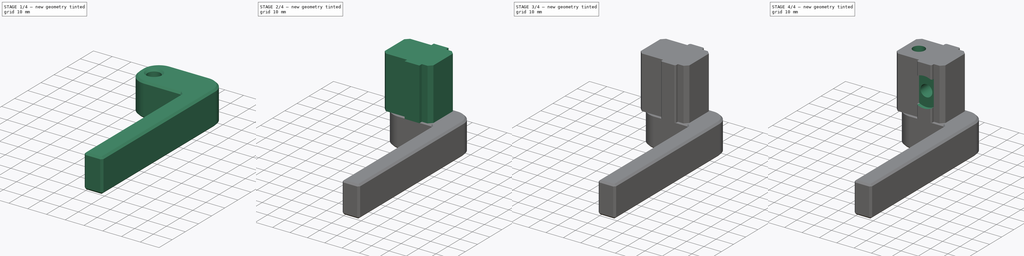
[diagram: build sequence overview — one tinted view per stage of 4, left to right]
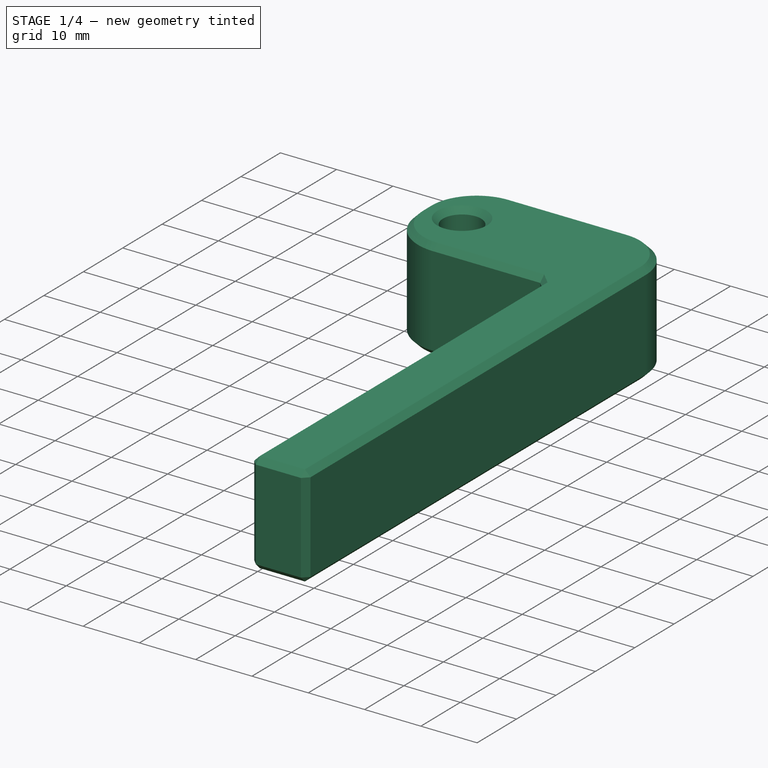
[diagram: stage 1 of 4 — iso view after this stage's code; geometry added in this stage tinted green]
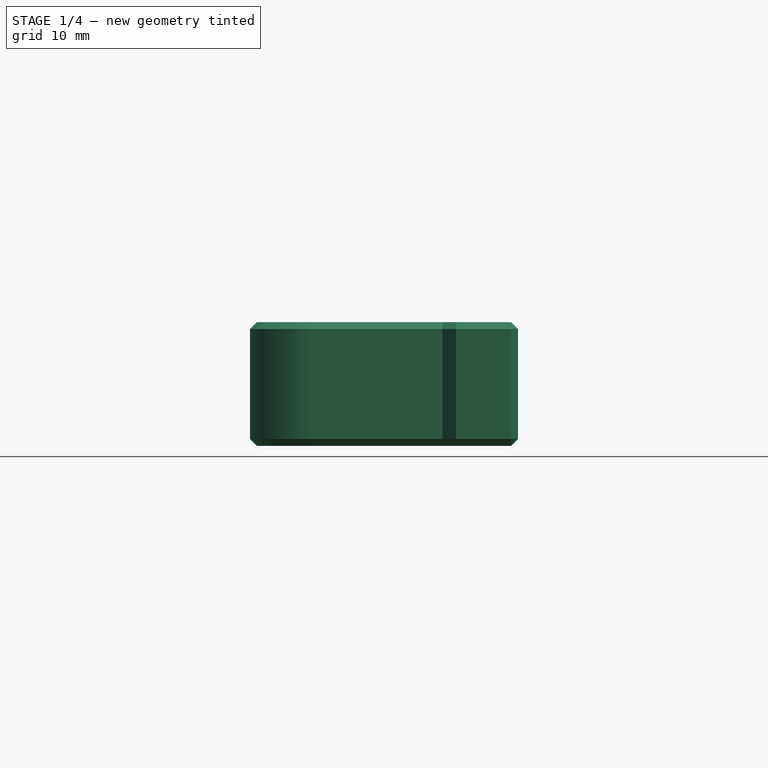
[diagram: stage 1 of 4 — front view after this stage's code; geometry added in this stage tinted green]
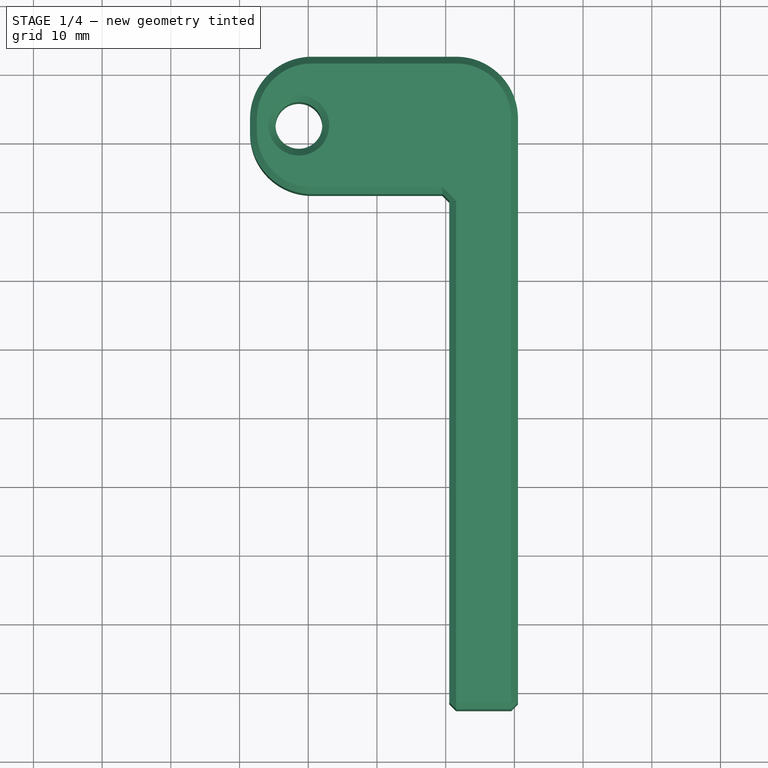
[diagram: stage 1 of 4 — top view after this stage's code; geometry added in this stage tinted green]
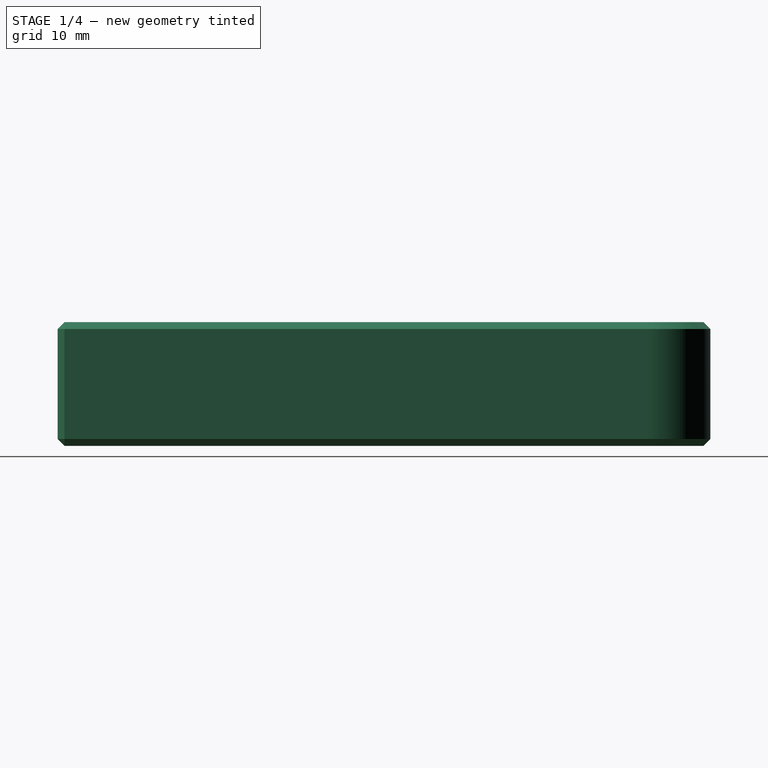
[diagram: stage 1 of 4 — right view after this stage's code; geometry added in this stage tinted green]
FCSTD DOCUMENT  (FreeCAD 0.22R35759 (Git))
Label: track flip stop
License: All rights reserved
LicenseURL: http://en.wikipedia.org/wiki/All_rights_reserved
objects: Sketcher::SketchObject×9, PartDesign::Pocket×4, PartDesign::Pad×3, PartDesign::Chamfer×3, PartDesign::Body×2, Spreadsheet::Sheet×1, PartDesign::Fillet×1
note: 33 computed .brp shape members not serialized (recipe doc carries the construction recipe); baked Part::Feature solids carry a one-line shape summary decoded from their .brp

FEATURE [PartDesign::Body] Body004  label="carrier003"
  Group = -> [Sketch020,Sketch021,Pad006,Sketch022,Pad007,Sketch023,Chamfer006,Chamfer007,Pocket009,Sketch024,Pocket010,Sketch025,Pocket011,Sketch026,Pocket012]
  Origin = -> Origin006
  Tip = -> Pocket012
FEATURE [Sketcher::SketchObject] Sketch027
  FullyConstrained = false
  sketch-geometry (19):
    g0: LineSegment StartX=-18.475 StartY=32.38 StartZ=0 EndX=9.525 EndY=32.38 EndZ=0
    g1: LineSegment StartX=9.525 StartY=32.38 StartZ=0 EndX=9.525 EndY=12.38 EndZ=0
    g2: LineSegment StartX=9.525 StartY=12.38 StartZ=0 EndX=-18.475 EndY=12.38 EndZ=0
    g3: LineSegment StartX=-18.475 StartY=12.38 StartZ=0 EndX=-18.475 EndY=32.38 EndZ=0
    g4: LineSegment StartX=-9.525 StartY=0 StartZ=0 EndX=9.525 EndY=0 EndZ=0
    g5: LineSegment StartX=9.525 StartY=0 StartZ=0 EndX=9.525 EndY=-70 EndZ=0
    g6: LineSegment StartX=9.525 StartY=-70 StartZ=0 EndX=-9.525 EndY=-70 EndZ=0
    g7: LineSegment StartX=-9.525 StartY=-70 StartZ=0 EndX=-9.525 EndY=0 EndZ=0
    g8: LineSegment StartX=-9.525 StartY=0 StartZ=0 EndX=9.525 EndY=0 EndZ=0
    g9: LineSegment StartX=9.525 StartY=0 StartZ=0 EndX=9.525 EndY=12.38 EndZ=0
    g10: LineSegment StartX=9.525 StartY=12.38 StartZ=0 EndX=-9.525 EndY=12.38 EndZ=0
    g11: LineSegment StartX=-9.525 StartY=12.38 StartZ=0 EndX=-9.525 EndY=0 EndZ=0
    g12: LineSegment StartX=-4.4 StartY=12.38 StartZ=0 EndX=4.4 EndY=12.38 EndZ=0
    g13: LineSegment StartX=4.4 StartY=12.38 StartZ=0 EndX=4.4 EndY=4.38 EndZ=0
    g14: LineSegment StartX=4.4 StartY=4.38 StartZ=0 EndX=-4.4 EndY=4.38 EndZ=0
    g15: LineSegment StartX=-4.4 StartY=4.38 StartZ=0 EndX=-4.4 EndY=12.38 EndZ=0
    g16: GeomPoint X=-18.475 Y=12.38 Z=0
    g17: GeomPoint X=-11.3625 Y=12.38 Z=0
    g18: Circle CenterX=-11.3625 CenterY=22.38 CenterZ=0 NormalX=0 NormalY=0 NormalZ=1 AngleXU=0 Radius=3.4
  constraints (51):
    c: Coincident(g0,g1)
    c: Coincident(g1,g2)
    c: Coincident(g2,g3)
    c: Coincident(g3,g0)
    c: Horizontal(g0)
    c: Horizontal(g2)
    c: Vertical(g1)
    c: Vertical(g3)
    c: DistanceX(g0,g0) = 28
    c: DistanceY(g1,g1) = 20
    c: Vertical(g1,g-3)
    c: Horizontal(g2,g-3)
    c: Coincident(g4,g5)
    c: Coincident(g5,g6)
    c: Coincident(g6,g7)
    c: Coincident(g7,g4)
    c: Horizontal(g4)
    c: Vertical(g5)
    c: Vertical(g7)
    c: Coincident(g8,g9)
    c: Coincident(g9,g10)
    c: Coincident(g10,g11)
    c: Coincident(g11,g8)
    c: Horizontal(g8)
    c: Horizontal(g10)
    c: Vertical(g9)
    c: Vertical(g11)
    c: Coincident(g8,g4)
    c: Coincident(g12,g13)
    c: Coincident(g13,g14)
    c: Coincident(g14,g15)
    c: Coincident(g15,g12)
    c: Horizontal(g14)
    c: Vertical(g13)
    c: Vertical(g15)
    c: DistanceY(g5,g5) = 70
    c: DistanceX(g6,g6) = 19.05
    c: DistanceX(g10,g10) = 19.05
    c: DistanceX(g12,g12) = 8.8
    c: DistanceY(g15,g15) = 8
    c: Symmetric(g5,g6,g-2)
    c: DistanceY(g9,g9) = 12.38
    c: Horizontal(g4,g-1)
    c: Symmetric(g12,g12,g-2)
    c: Horizontal(g12,g10)
    c: Horizontal(g11,g16)
    c: Vertical(g12,g16)
    c: Symmetric(g16,g11,g17)
    c: Vertical(g18,g17)
    c: DistanceY(g17,g18) = 10
    c: Diameter(g18) = 6.8
FEATURE [Sketcher::SketchObject] Sketch028
  ExternalGeometry = -> [Sketch027]
  FullyConstrained = true
  MapMode = 5
  Support = -> [XY_Plane007]
  expr: Constraints[11] = <<q>>.carrier_width + 1 mm
  expr: Constraints[12] = <<q>>.arm_vertical_length
  expr: Constraints[14] = <<q>>.arm_vertical_thickness
  expr: Constraints[17] = <<q>>.arm_bolt_diameter
  sketch-geometry (7):
    g0: LineSegment StartX=-18.475 StartY=12.38 StartZ=0 EndX=10.525 EndY=12.38 EndZ=0
    g1: LineSegment StartX=10.525 StartY=12.38 StartZ=0 EndX=10.525 EndY=-62.62 EndZ=0
    g2: LineSegment StartX=10.525 StartY=-62.62 StartZ=0 EndX=20.525 EndY=-62.62 EndZ=0
    g3: LineSegment StartX=20.525 StartY=-62.62 StartZ=0 EndX=20.525 EndY=32.38 EndZ=0
    g4: LineSegment StartX=20.525 StartY=32.38 StartZ=0 EndX=-18.475 EndY=32.38 EndZ=0
    g5: LineSegment StartX=-18.475 StartY=32.38 StartZ=0 EndX=-18.475 EndY=12.38 EndZ=0
    g6: Circle CenterX=-11.3625 CenterY=22.38 CenterZ=0 NormalX=0 NormalY=0 NormalZ=1 AngleXU=0 Radius=3.4
  constraints (18):
    c: Coincident(g-5,g0)
    c: Coincident(g0,g1)
    c: Vertical(g1)
    c: Coincident(g1,g2)
    c: Coincident(g2,g3)
    c: Coincident(g3,g4)
    c: Coincident(g4,g5)
    c: Coincident(g5,g0)
    c: Coincident(g4,g-4)
    c: Horizontal(g4)
    c: Horizontal(g0)
    c: DistanceX(g0,g0) = 29
    c: DistanceY(g1,g1) = 75
    c: Horizontal(g2)
    c: DistanceX(g2,g2) = 10
    c: Vertical(g3)
    c: Coincident(g6,g-3)
    c: Diameter(g6) = 6.8
FEATURE [PartDesign::Pad] Pad008
  Direction = (0,0,1)
  Length = 18
  Length2 = 10
  Profile = -> Sketch028
  ReferenceAxis = -> Sketch028 [N_Axis]
  Reversed = true
  Type = 0
  expr: Length = <<q>>.arm_horizontal_thickness
FEATURE [PartDesign::Fillet] Fillet002
  Base = -> Pad008 [Edge14,Edge1,Edge11]
  BaseFeature = -> Pad008
  Radius = 9
  SupportTransform = false
  UseAllEdges = false
FEATURE [PartDesign::Chamfer] Chamfer008
  Angle = 45
  Base = -> Fillet002 [Face5,Face2,Face7,Edge3]
  BaseFeature = -> Fillet002
  ChamferType = 0
  FlipDirection = false
  Size = 1
  Size2 = 1
  SupportTransform = false
  UseAllEdges = false
FEATURE [PartDesign::Body] Body005  label="arm003"
  Group = -> [Sketch027,Sketch028,Pad008,Fillet002,Chamfer008]
  Origin = -> Origin007
  Tip = -> Chamfer008
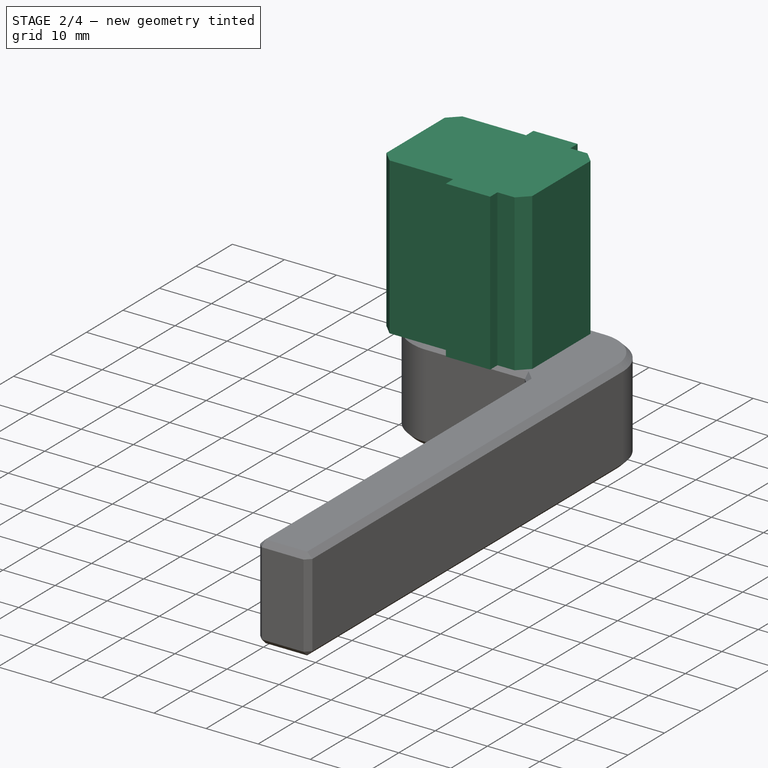
[diagram: stage 2 of 4 — iso view after this stage's code; geometry added in this stage tinted green]
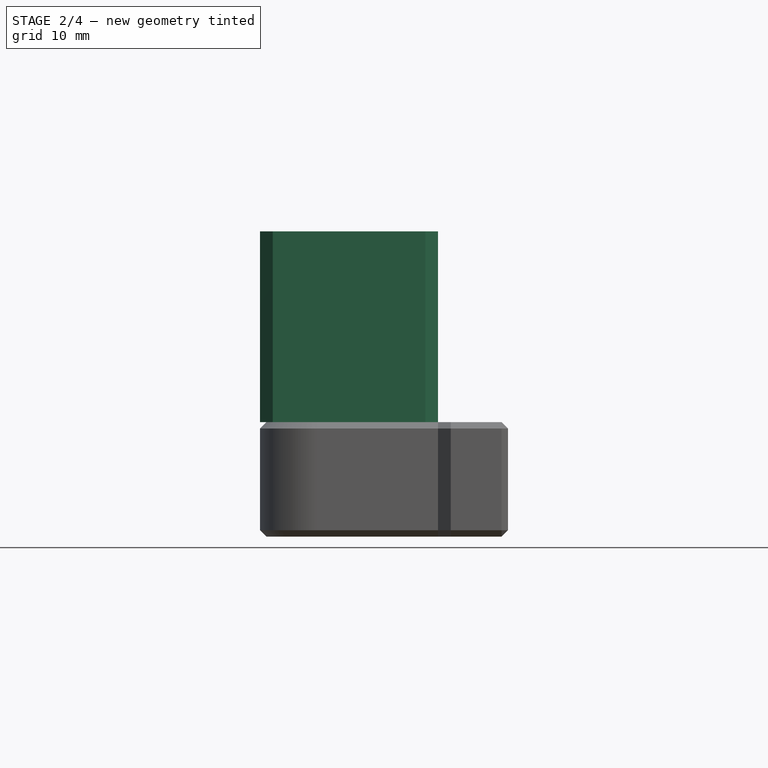
[diagram: stage 2 of 4 — front view after this stage's code; geometry added in this stage tinted green]
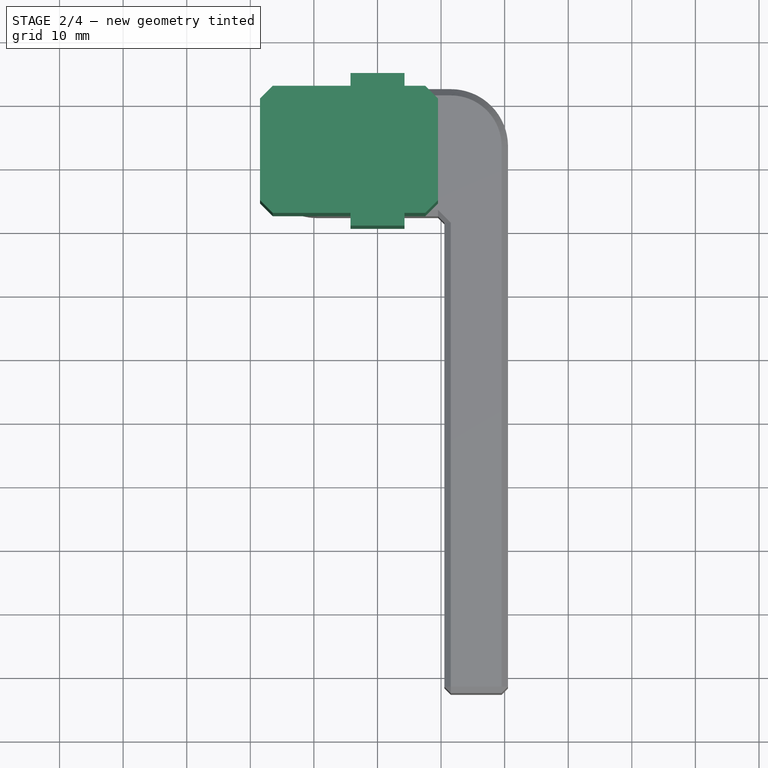
[diagram: stage 2 of 4 — top view after this stage's code; geometry added in this stage tinted green]
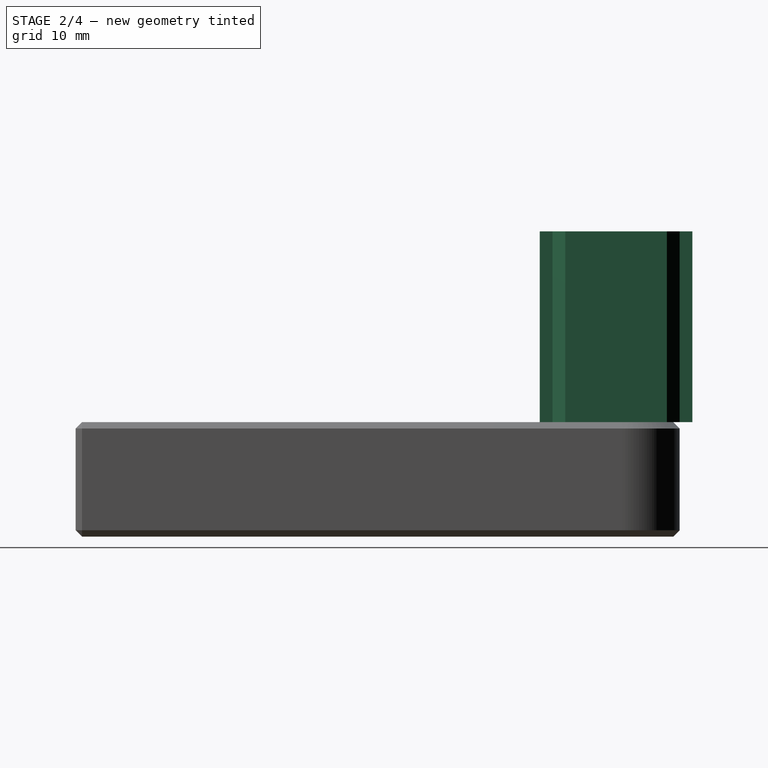
[diagram: stage 2 of 4 — right view after this stage's code; geometry added in this stage tinted green]
FEATURE [Spreadsheet::Sheet] Spreadsheet  label="q"
  cells = A3='carrier width; B3(carrier_width)==floor(1.5 * B27); A4='carrier length; B4(carrier_length)==30 mm; A5='carrier height; B5(carrier_height)==20 mm; A6='track hole diameter; B6(track_hole_diameter)==6.8 mm; C6='a little more than 1/2 inch; A7='track guide width; B7(track_guide_width)==8.5 mm; A8='track guide height; B8(track_guide_height)==2 mm; A9='track guide inset; B9(track_guide_inset)==5.5 mm; A10='track guide knob pad; B10(track_guide_knob_pad)==17 mm; A11='track guide center; B11(track_guide_center)==carrier_length / 4; A12='arm bolt diameter; B12(arm_bolt_diameter)==6.8 mm; A13='arm bolt offset; B13(arm_bolt_offset)=10; A15='arm width; B15(arm_width)==20 mm; A16='arm vertical thickness; B16(arm_vertical_thickness)==10 mm; A17='arm vertical length; B17(arm_vertical_length)=75; A18='arm horizontal thickness; B18(arm_horizontal_thickness)==18 mm; A19='arm horizontal length; B19(arm_horizontal_length)==40 mm; A20='arm fillet; B20(arm_fillet)==8 mm; A21='arm chamfer; B21(arm_chamfer)==1 mm; A24='fence height; B24(fence_height)==70 mm; A25='fence width; B25(fence_width)==0.75 in; A26='track height; B26(track_height)==12.38 mm; A27='track width; B27(track_width)==0.75 in; A28='track slot width; B28(track_slot_width)==8.8 mm
FEATURE [Sketcher::SketchObject] Sketch020
  FullyConstrained = true
  MapMode = 5
  Support = -> [XY_Plane006]
  expr: Constraints[23] = <<q>>.fence_height
  expr: Constraints[24] = <<q>>.fence_width
  expr: Constraints[25] = <<q>>.track_width
  expr: Constraints[26] = <<q>>.track_slot_width
  expr: Constraints[29] = <<q>>.track_height
  sketch-geometry (12):
    g0: LineSegment StartX=-9.525 StartY=0 StartZ=0 EndX=9.525 EndY=0 EndZ=0
    g1: LineSegment StartX=9.525 StartY=0 StartZ=0 EndX=9.525 EndY=-70 EndZ=0
    g2: LineSegment StartX=9.525 StartY=-70 StartZ=0 EndX=-9.525 EndY=-70 EndZ=0
    g3: LineSegment StartX=-9.525 StartY=-70 StartZ=0 EndX=-9.525 EndY=0 EndZ=0
    g4: LineSegment StartX=-9.525 StartY=0 StartZ=0 EndX=9.525 EndY=0 EndZ=0
    g5: LineSegment StartX=9.525 StartY=0 StartZ=0 EndX=9.525 EndY=12.38 EndZ=0
    g6: LineSegment StartX=9.525 StartY=12.38 StartZ=0 EndX=-9.525 EndY=12.38 EndZ=0
    g7: LineSegment StartX=-9.525 StartY=12.38 StartZ=0 EndX=-9.525 EndY=0 EndZ=0
    g8: LineSegment StartX=-4.4 StartY=12.38 StartZ=0 EndX=4.4 EndY=12.38 EndZ=0
    g9: LineSegment StartX=4.4 StartY=12.38 StartZ=0 EndX=4.4 EndY=4.38 EndZ=0
    g10: LineSegment StartX=4.4 StartY=4.38 StartZ=0 EndX=-4.4 EndY=4.38 EndZ=0
    g11: LineSegment StartX=-4.4 StartY=4.38 StartZ=0 EndX=-4.4 EndY=12.38 EndZ=0
  constraints (33):
    c: Coincident(g0,g1)
    c: Coincident(g1,g2)
    c: Coincident(g2,g3)
    c: Coincident(g3,g0)
    c: Horizontal(g0)
    c: Vertical(g1)
    c: Vertical(g3)
    c: Coincident(g4,g5)
    c: Coincident(g5,g6)
    c: Coincident(g6,g7)
    c: Coincident(g7,g4)
    c: Horizontal(g4)
    c: Horizontal(g6)
    c: Vertical(g5)
    c: Vertical(g7)
    c: Coincident(g4,g0)
    c: Coincident(g8,g9)
    c: Coincident(g9,g10)
    c: Coincident(g10,g11)
    c: Coincident(g11,g8)
    c: Horizontal(g10)
    c: Vertical(g9)
    c: Vertical(g11)
    c: DistanceY(g1,g1) = 70
    c: DistanceX(g2,g2) = 19.05
    c: DistanceX(g6,g6) = 19.05
    c: DistanceX(g8,g8) = 8.8
    c: DistanceY(g11,g11) = 8
    c: Symmetric(g1,g2,g-2)
    c: DistanceY(g5,g5) = 12.38
    c: Horizontal(g0,g-1)
    c: Symmetric(g8,g8,g-2)
    c: Horizontal(g8,g6)
FEATURE [Sketcher::SketchObject] Sketch021
  ExternalGeometry = -> [Sketch020]
  FullyConstrained = true
  MapMode = 5
  Support = -> [XY_Plane006]
  expr: Constraints[8] = <<q>>.carrier_width
  expr: Constraints[9] = <<q>>.carrier_height
  sketch-geometry (4):
    g0: LineSegment StartX=-18.475 StartY=32.38 StartZ=0 EndX=9.525 EndY=32.38 EndZ=0
    g1: LineSegment StartX=9.525 StartY=32.38 StartZ=0 EndX=9.525 EndY=12.38 EndZ=0
    g2: LineSegment StartX=9.525 StartY=12.38 StartZ=0 EndX=-18.475 EndY=12.38 EndZ=0
    g3: LineSegment StartX=-18.475 StartY=12.38 StartZ=0 EndX=-18.475 EndY=32.38 EndZ=0
  constraints (12):
    c: Coincident(g0,g1)
    c: Coincident(g1,g2)
    c: Coincident(g2,g3)
    c: Coincident(g3,g0)
    c: Horizontal(g0)
    c: Horizontal(g2)
    c: Vertical(g1)
    c: Vertical(g3)
    c: DistanceX(g0,g0) = 28
    c: DistanceY(g1,g1) = 20
    c: Vertical(g1,g-3)
    c: Horizontal(g2,g-3)
FEATURE [PartDesign::Pad] Pad006
  Direction = (0,0,1)
  Length = 30
  Length2 = 10
  Profile = -> Sketch021
  ReferenceAxis = -> Sketch021 [N_Axis]
  Type = 0
  expr: Length = <<q>>.carrier_length
FEATURE [Sketcher::SketchObject] Sketch022
  ExternalGeometry = -> [Pad006]
  FullyConstrained = true
  MapMode = 5
  Placement = pos=(0,0,30) rot=(0,0,1;0rad)
  Support = -> [Pad006]
  expr: Constraints[10] = <<q>>.track_guide_height
  expr: Constraints[7] = <<q>>.track_guide_height * 2 + <<q>>.carrier_height
  expr: Constraints[8] = <<q>>.track_guide_width
  sketch-geometry (4):
    g0: LineSegment StartX=-4.25 StartY=10.38 StartZ=0 EndX=4.25 EndY=10.38 EndZ=0
    g1: LineSegment StartX=4.25 StartY=10.38 StartZ=0 EndX=4.25 EndY=34.38 EndZ=0
    g2: LineSegment StartX=4.25 StartY=34.38 StartZ=0 EndX=-4.25 EndY=34.38 EndZ=0
    g3: LineSegment StartX=-4.25 StartY=34.38 StartZ=0 EndX=-4.25 EndY=10.38 EndZ=0
  constraints (11):
    c: Coincident(g0,g1)
    c: Coincident(g1,g2)
    c: Coincident(g2,g3)
    c: Coincident(g3,g0)
    c: Horizontal(g2)
    c: Vertical(g1)
    c: Vertical(g3)
    c: DistanceY(g1,g1) = 24
    c: DistanceX(g0,g0) = 8.5
    c: Symmetric(g0,g0,g-2)
    c: DistanceY(g0,g-3) = 2
FEATURE [PartDesign::Pad] Pad007
  BaseFeature = -> Pad006
  Direction = (0,0,1)
  Length = 30
  Length2 = 10
  Profile = -> Sketch022
  ReferenceAxis = -> Sketch022 [N_Axis]
  Reversed = true
  Type = 0
  expr: Length = <<q>>.carrier_length
FEATURE [PartDesign::Chamfer] Chamfer006
  Angle = 45
  Base = -> Pad007 [Edge4,Edge14,Edge41,Edge42]
  BaseFeature = -> Pad007
  ChamferType = 0
  FlipDirection = false
  Size = 2
  Size2 = 1
  SupportTransform = false
  UseAllEdges = false
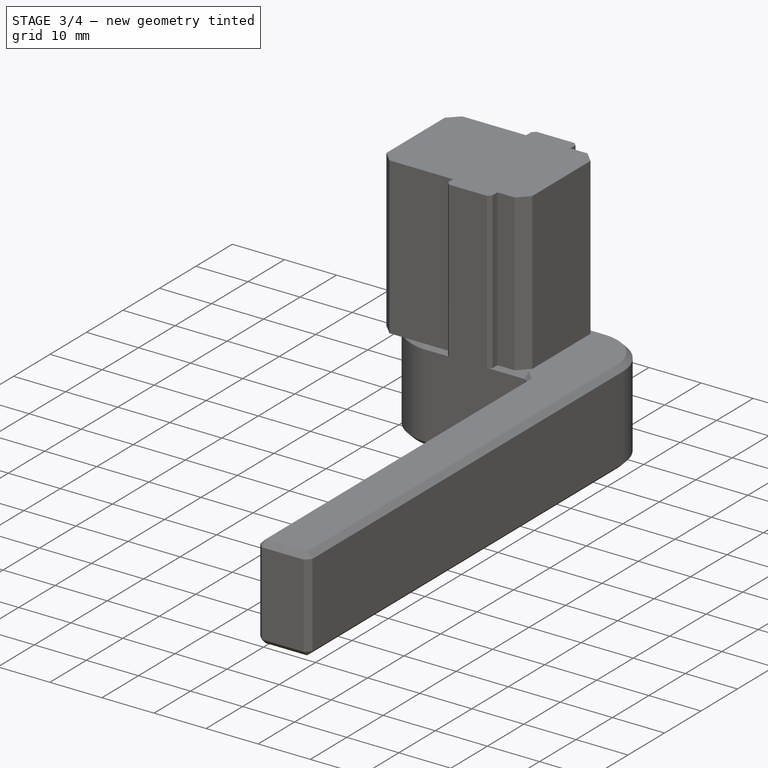
[diagram: stage 3 of 4 — iso view after this stage's code; geometry added in this stage tinted green]
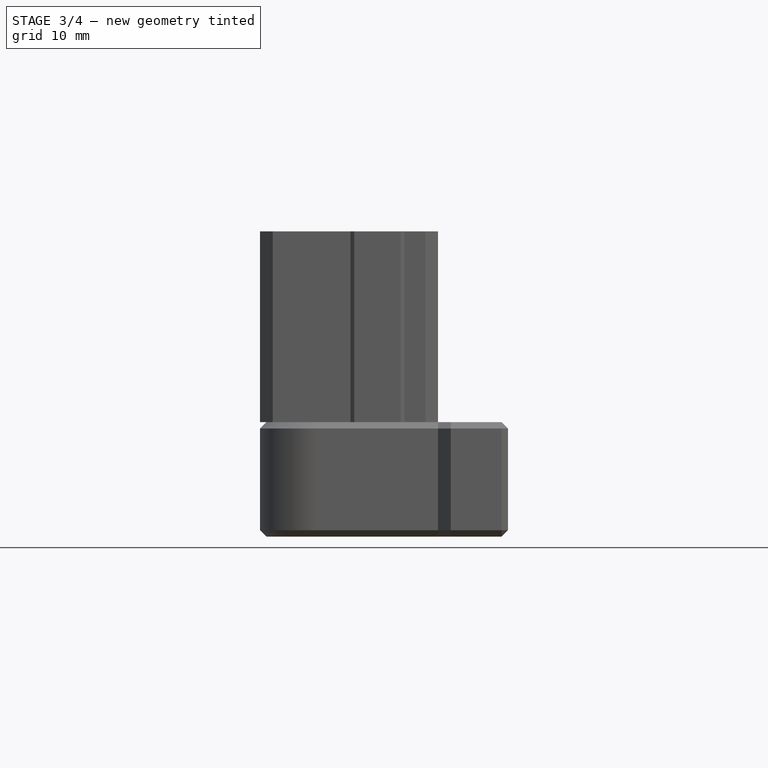
[diagram: stage 3 of 4 — front view after this stage's code; geometry added in this stage tinted green]
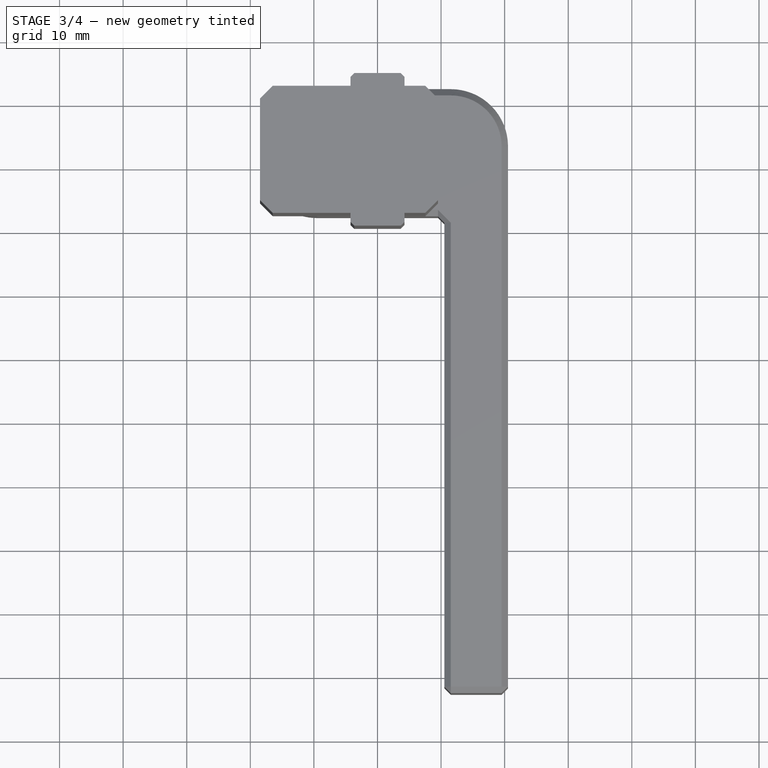
[diagram: stage 3 of 4 — top view after this stage's code; geometry added in this stage tinted green]
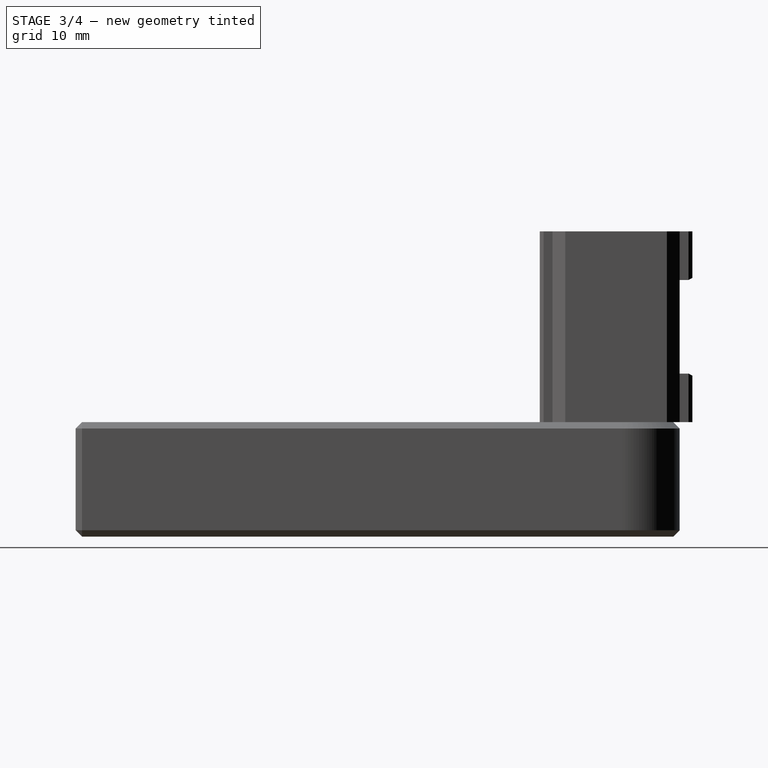
[diagram: stage 3 of 4 — right view after this stage's code; geometry added in this stage tinted green]
FEATURE [PartDesign::Chamfer] Chamfer007
  Angle = 45
  Base = -> Chamfer006 [Edge30,Edge14,Edge42,Edge56]
  BaseFeature = -> Chamfer006
  ChamferType = 0
  FlipDirection = false
  Size = 0.6
  Size2 = 1
  SupportTransform = false
  UseAllEdges = false
FEATURE [Sketcher::SketchObject] Sketch023
  FullyConstrained = true
  MapMode = 5
  Placement = pos=(0,34.38,0) rot=(0,0.707107,0.707107;3.14159rad)
  Support = -> [Pad007]
  expr: Constraints[1] = <<q>>.track_guide_knob_pad
  expr: Constraints[2] = <<q>>.carrier_length / 2
  sketch-geometry (1):
    g0: Circle CenterX=0 CenterY=15 CenterZ=0 NormalX=0 NormalY=0 NormalZ=1 AngleXU=0 Radius=8.5
  constraints (3):
    c: PointOnObject(g0,g-2)
    c: Diameter(g0) = 17
    c: DistanceY(g-1,g0) = 15
FEATURE [PartDesign::Pocket] Pocket009
  BaseFeature = -> Chamfer007
  Direction = (0,-1,2e-16)
  Length = 2
  Length2 = 5
  Profile = -> Sketch023
  ReferenceAxis = -> Sketch023 [N_Axis]
  Type = 0
  expr: Length = <<q>>.track_guide_height
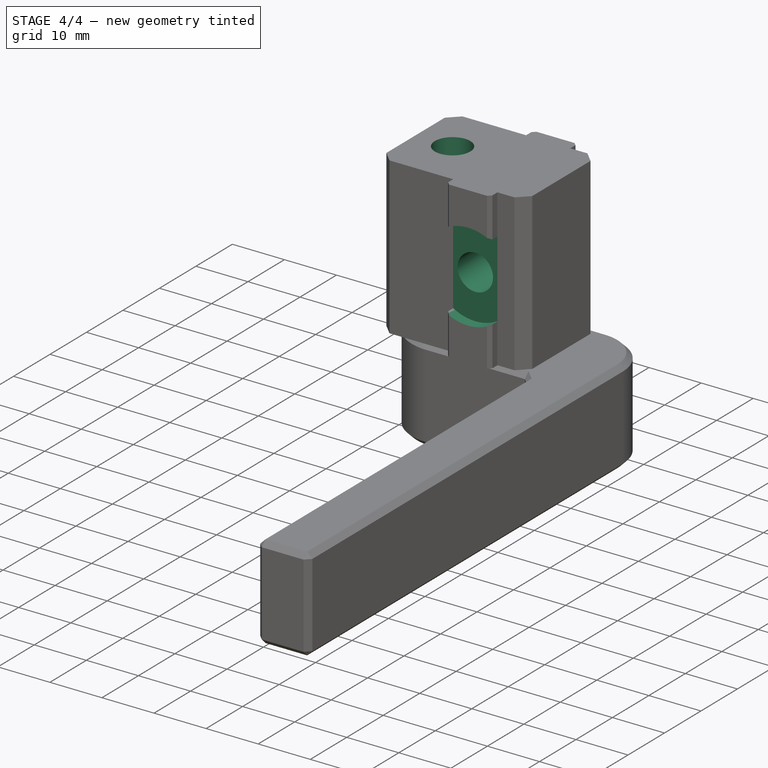
[diagram: stage 4 of 4 — iso view after this stage's code; geometry added in this stage tinted green]
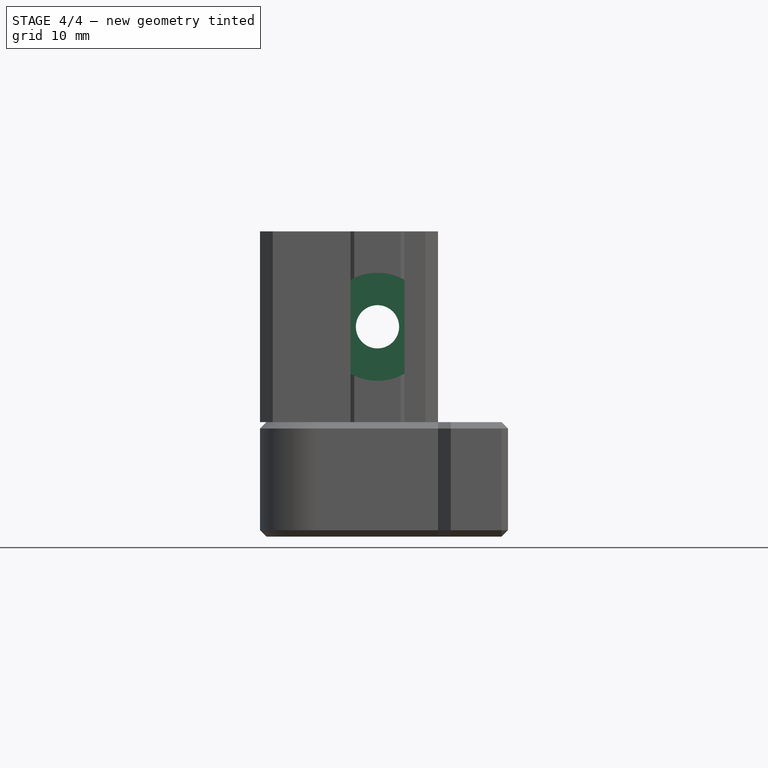
[diagram: stage 4 of 4 — front view after this stage's code; geometry added in this stage tinted green]
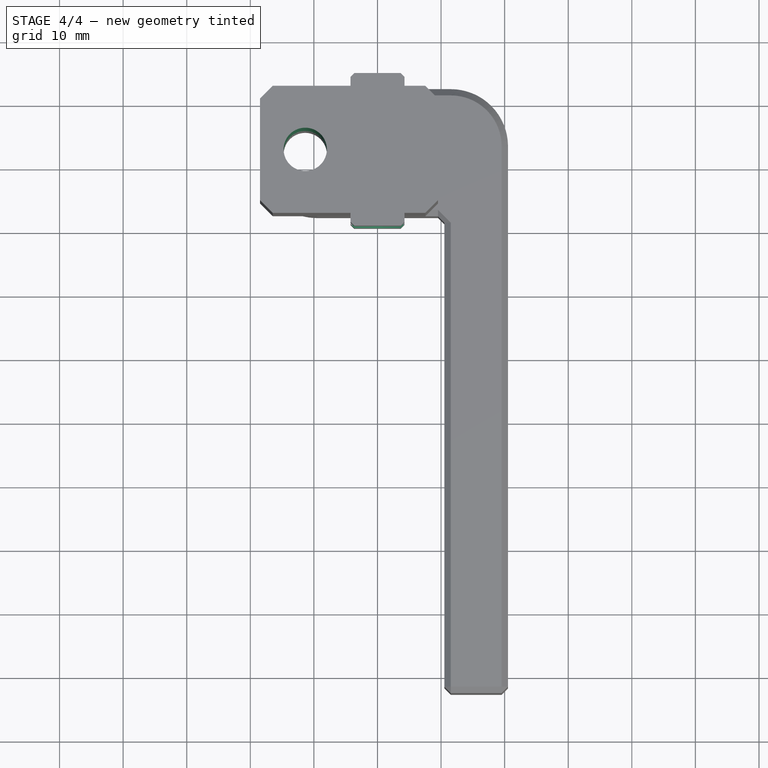
[diagram: stage 4 of 4 — top view after this stage's code; geometry added in this stage tinted green]
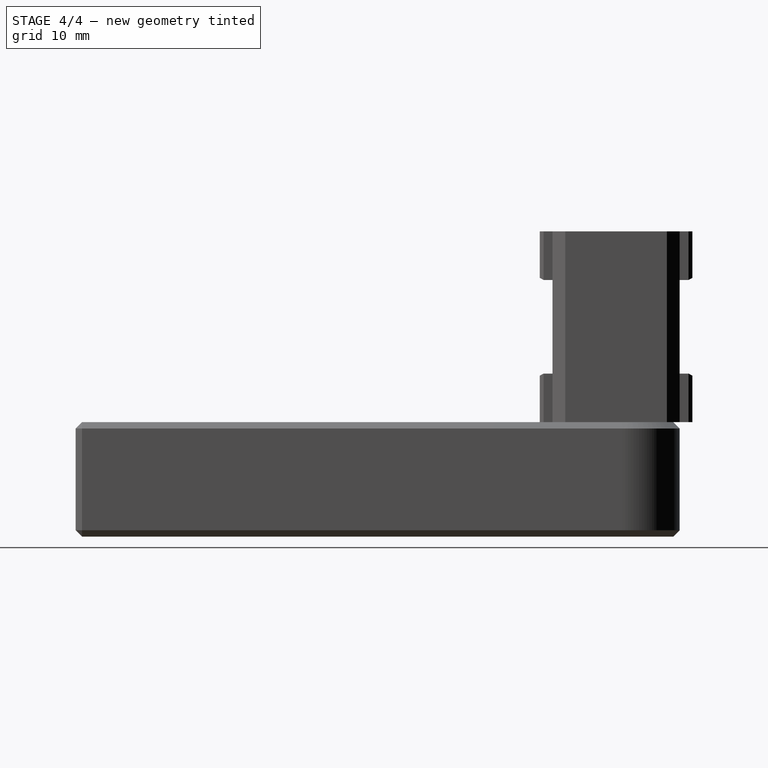
[diagram: stage 4 of 4 — right view after this stage's code; geometry added in this stage tinted green]
FEATURE [Sketcher::SketchObject] Sketch024
  AttachmentOffset = pos=(0,0,-24) rot=(0,0,1;0rad)
  FullyConstrained = true
  MapMode = 5
  Placement = pos=(0,10.38,5.3e-15) rot=(0,0.707107,0.707107;3.14159rad)
  Support = -> [Pad007]
  expr: Constraints[1] = <<q>>.track_guide_knob_pad
  expr: Constraints[2] = <<q>>.carrier_length / 2
  sketch-geometry (1):
    g0: Circle CenterX=0 CenterY=15 CenterZ=0 NormalX=0 NormalY=0 NormalZ=1 AngleXU=0 Radius=8.5
  constraints (3):
    c: PointOnObject(g0,g-2)
    c: Diameter(g0) = 17
    c: DistanceY(g-1,g0) = 15
FEATURE [PartDesign::Pocket] Pocket010
  BaseFeature = -> Pocket009
  Direction = (0,-1,2e-16)
  Length = 2
  Length2 = 5
  Profile = -> Sketch024
  ReferenceAxis = -> Sketch024 [N_Axis]
  Reversed = true
  Type = 0
  expr: Length = <<q>>.track_guide_height
FEATURE [Sketcher::SketchObject] Sketch025
  FullyConstrained = true
  MapMode = 5
  Placement = pos=(0,32.38,0) rot=(0,0.707107,0.707107;3.14159rad)
  Support = -> [Pocket010]
  expr: Constraints[1] = <<q>>.track_hole_diameter
  expr: Constraints[2] = <<q>>.carrier_length / 2
  sketch-geometry (1):
    g0: Circle CenterX=0 CenterY=15 CenterZ=0 NormalX=0 NormalY=0 NormalZ=1 AngleXU=0 Radius=3.4
  constraints (3):
    c: PointOnObject(g0,g-2)
    c: Diameter(g0) = 6.8
    c: DistanceY(g-1,g0) = 15
FEATURE [PartDesign::Pocket] Pocket011
  BaseFeature = -> Pocket010
  Direction = (0,-1,2e-16)
  Length = 0
  Length2 = 5
  Profile = -> Sketch025
  ReferenceAxis = -> Sketch025 [N_Axis]
  Type = 3
  UpToFace = -> Pocket010 [Face21]
FEATURE [Sketcher::SketchObject] Sketch026
  ExternalGeometry = -> [Pocket011]
  FullyConstrained = true
  MapMode = 5
  Placement = pos=(0,0,30) rot=(0,0,1;0rad)
  Support = -> [Pocket011]
  expr: Constraints[4] = <<q>>.carrier_height / 2
  expr: Constraints[5] = <<q>>.arm_bolt_diameter
  sketch-geometry (3):
    g0: GeomPoint X=-18.475 Y=12.38 Z=0
    g1: GeomPoint X=-11.3625 Y=12.38 Z=0
    g2: Circle CenterX=-11.3625 CenterY=22.38 CenterZ=0 NormalX=0 NormalY=0 NormalZ=1 AngleXU=0 Radius=3.4
  constraints (6):
    c: Horizontal(g-5,g0)
    c: Vertical(g-4,g0)
    c: Symmetric(g0,g-5,g1)
    c: Vertical(g2,g1)
    c: DistanceY(g1,g2) = 10
    c: Diameter(g2) = 6.8
FEATURE [PartDesign::Pocket] Pocket012
  BaseFeature = -> Pocket011
  Direction = (0,0,-1)
  Length = 0
  Length2 = 5
  Profile = -> Sketch026
  ReferenceAxis = -> Sketch026 [N_Axis]
  Type = 3
  UpToFace = -> Pocket011 [Face10]
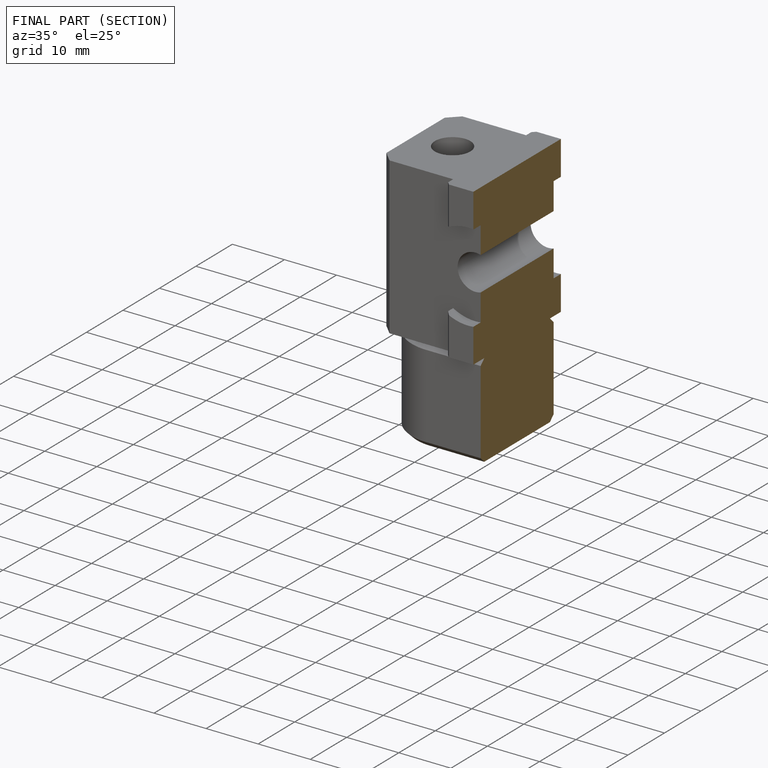
[diagram: finished part — half-section view (interior)]
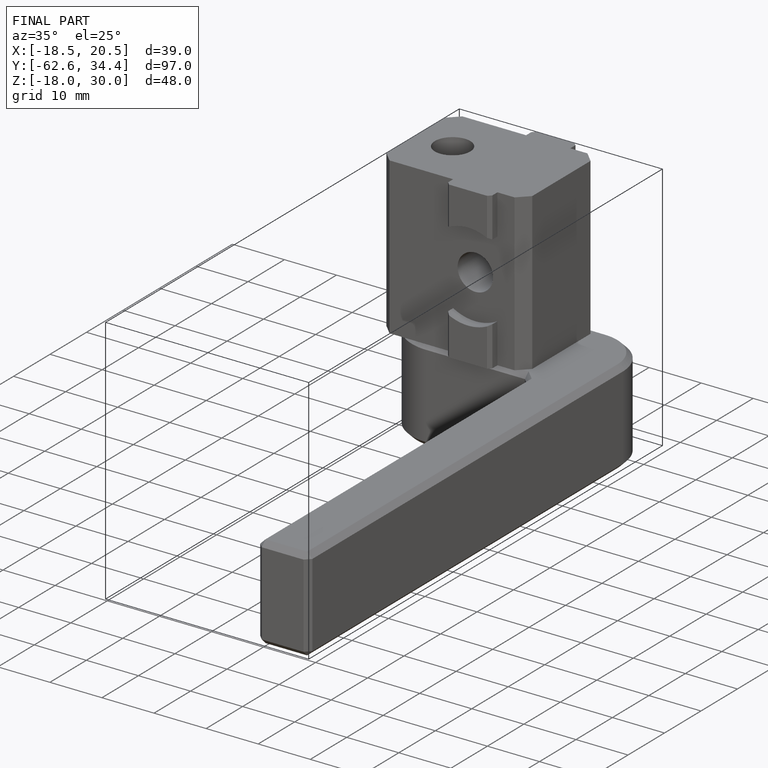
[diagram: finished part — iso view with bounding-box wireframe]
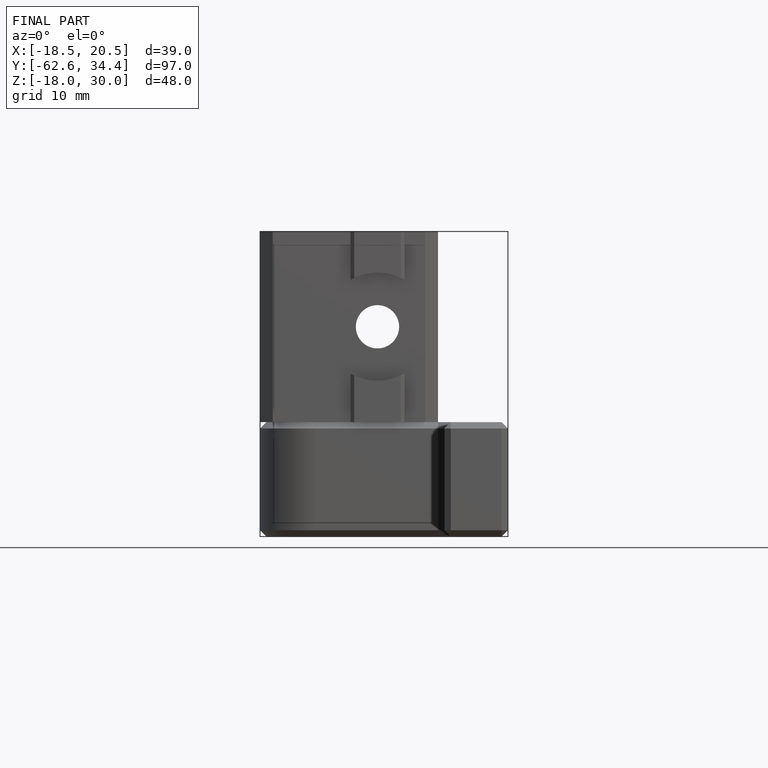
[diagram: finished part — front view with bounding-box wireframe]
